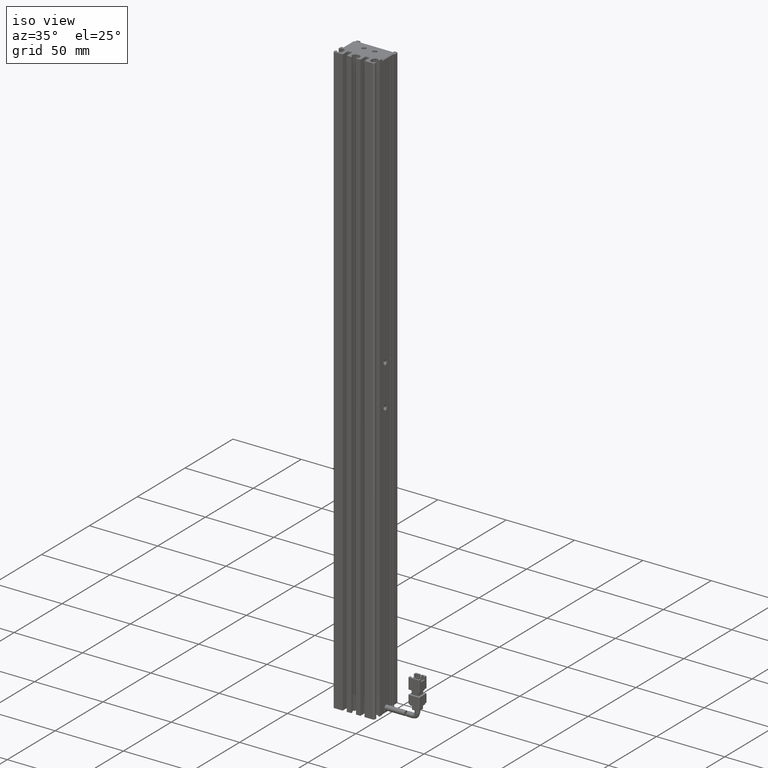
[diagram: clean part render]
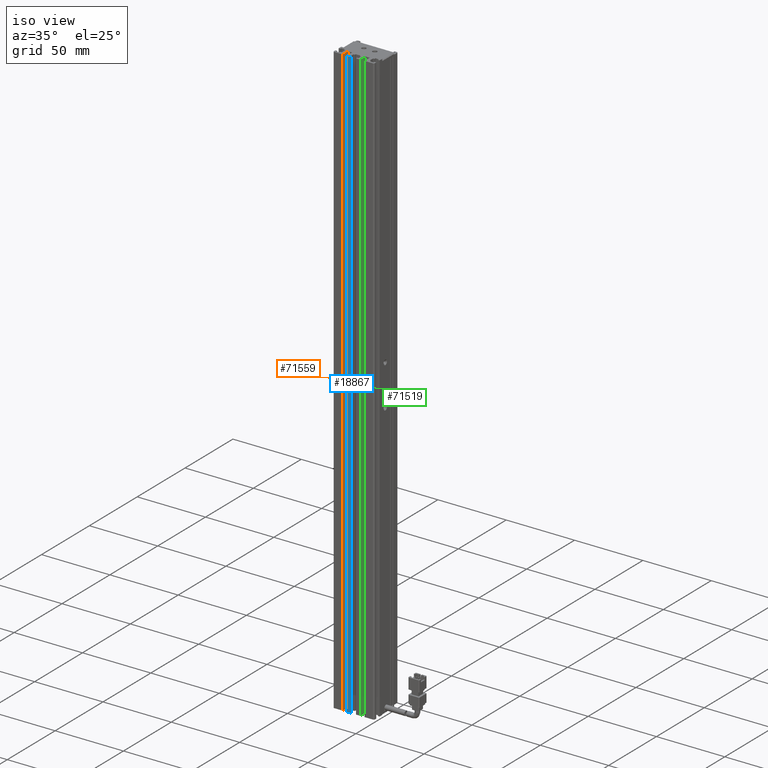
[diagram: same view with three faces highlighted in distinct colors, each labeled with its STEP entity id]
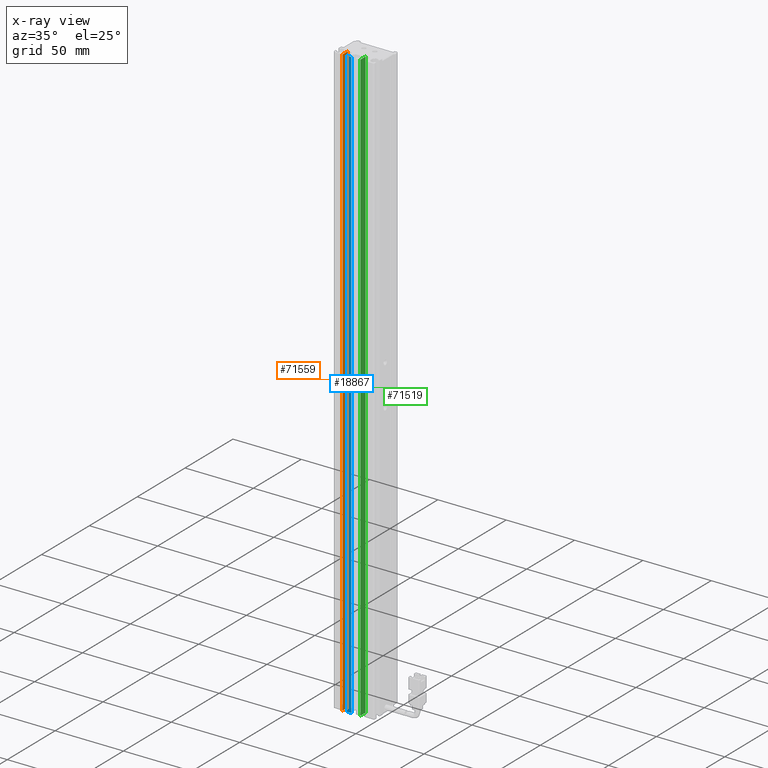
[diagram: x-ray of the same camera — body ghosted, the three highlighted faces saturated]
A machine part, iso view with three faces highlighted in distinct colors.
The next image is the same camera in x-ray (body ghosted, the three faces saturated) — at least one of them is partly hidden behind the body in this view.
Their STEP definitions:

[orange] entity #71559 — the highlighted planar face has unit normal (-1, 0, 0).
#1902 = LINE ( 'NONE', #17249, #34533 ) ;
#5639 = CARTESIAN_POINT ( 'NONE',  ( 32.92537974683543200, 10.69594479660386800, -332.0000000000000000 ) ) ;
#6559 = EDGE_CURVE ( 'NONE', #61937, #23156, #15769, .T. ) ;
#10011 = VECTOR ( 'NONE', #35826, 1000.000000000000000 ) ;
#13469 = CARTESIAN_POINT ( 'NONE',  ( 32.92537974683543200, 16.19594479660386500, 102.0000000000000000 ) ) ;
#15769 = LINE ( 'NONE', #40181, #46506 ) ;
#17249 = CARTESIAN_POINT ( 'NONE',  ( 32.92537974683543200, 7.083797468354437600, 102.0000000000000000 ) ) ;
#17338 = EDGE_CURVE ( 'NONE', #61937, #71895, #59015, .T. ) ;
#19635 = CARTESIAN_POINT ( 'NONE',  ( 32.92537974683543200, 16.19594479660386500, 102.0000000000000000 ) ) ;
#20033 = ORIENTED_EDGE ( 'NONE', *, *, #53752, .F. ) ;
#20244 = CARTESIAN_POINT ( 'NONE',  ( 32.92537974683543200, 16.19594479660386500, -332.0000000000000000 ) ) ;
#23156 = VERTEX_POINT ( 'NONE', #61096 ) ;
#24694 = AXIS2_PLACEMENT_3D ( 'NONE', #29459, #72513, #35613 ) ;
#26769 = EDGE_CURVE ( 'NONE', #71895, #52316, #70390, .T. ) ;
#28582 = DIRECTION ( 'NONE',  ( 0.0000000000000000000, 0.0000000000000000000, 1.000000000000000000 ) ) ;
#29459 = CARTESIAN_POINT ( 'NONE',  ( 32.92537974683543200, 7.083797468354437600, 102.0000000000000000 ) ) ;
#34533 = VECTOR ( 'NONE', #60235, 1000.000000000000000 ) ;
#35613 = DIRECTION ( 'NONE',  ( 0.0000000000000000000, 0.0000000000000000000, 1.000000000000000000 ) ) ;
#35826 = DIRECTION ( 'NONE',  ( 0.0000000000000000000, 1.000000000000000000, -0.0000000000000000000 ) ) ;
#39199 = ORIENTED_EDGE ( 'NONE', *, *, #17338, .T. ) ;
#40181 = CARTESIAN_POINT ( 'NONE',  ( 32.92537974683543200, 10.69594479660386800, 102.0000000000000000 ) ) ;
#46506 = VECTOR ( 'NONE', #28582, 1000.000000000000000 ) ;
#47727 = CARTESIAN_POINT ( 'NONE',  ( 32.92537974683543200, 7.083797468354437600, -332.0000000000000000 ) ) ;
#48970 = ORIENTED_EDGE ( 'NONE', *, *, #6559, .F. ) ;
#50300 = DIRECTION ( 'NONE',  ( 0.0000000000000000000, -0.0000000000000000000, 1.000000000000000000 ) ) ;
#52272 = ORIENTED_EDGE ( 'NONE', *, *, #26769, .T. ) ;
#52316 = VERTEX_POINT ( 'NONE', #13469 ) ;
#53752 = EDGE_CURVE ( 'NONE', #23156, #52316, #1902, .T. ) ;
#57171 = FACE_OUTER_BOUND ( 'NONE', #59562, .T. ) ;
#59015 = LINE ( 'NONE', #47727, #10011 ) ;
#59562 = EDGE_LOOP ( 'NONE', ( #52272, #20033, #48970, #39199 ) ) ;
#60235 = DIRECTION ( 'NONE',  ( 0.0000000000000000000, 1.000000000000000000, -0.0000000000000000000 ) ) ;
#61096 = CARTESIAN_POINT ( 'NONE',  ( 32.92537974683543200, 10.69594479660386800, 102.0000000000000000 ) ) ;
#61937 = VERTEX_POINT ( 'NONE', #5639 ) ;
#68434 = VECTOR ( 'NONE', #50300, 1000.000000000000000 ) ;
#70390 = LINE ( 'NONE', #19635, #68434 ) ;
#71559 = ADVANCED_FACE ( 'NONE', ( #57171 ), #72263, .F. ) ;
#71895 = VERTEX_POINT ( 'NONE', #20244 ) ;
#72263 = PLANE ( 'NONE',  #24694 ) ;
#72513 = DIRECTION ( 'NONE',  ( -1.000000000000000000, 0.0000000000000000000, 0.0000000000000000000 ) ) ;

[blue] entity #18867 — the highlighted planar face has unit normal (0, -1, 0).
#1105 = CARTESIAN_POINT ( 'NONE',  ( 40.92537974683542500, 10.69594479660386800, 102.0000000000000000 ) ) ;
#2931 = VECTOR ( 'NONE', #40493, 1000.000000000000000 ) ;
#7002 = VERTEX_POINT ( 'NONE', #19330 ) ;
#7035 = DIRECTION ( 'NONE',  ( 1.000000000000000000, 0.0000000000000000000, 0.0000000000000000000 ) ) ;
#14539 = VERTEX_POINT ( 'NONE', #16011 ) ;
#14630 = VECTOR ( 'NONE', #72106, 1000.000000000000000 ) ;
#15022 = EDGE_CURVE ( 'NONE', #22461, #7002, #47345, .T. ) ;
#15653 = EDGE_CURVE ( 'NONE', #14539, #22461, #17262, .T. ) ;
#16011 = CARTESIAN_POINT ( 'NONE',  ( 35.92537974683543200, 10.69594479660386800, 102.0000000000000000 ) ) ;
#17262 = LINE ( 'NONE', #53973, #49936 ) ;
#18867 = ADVANCED_FACE ( 'NONE', ( #61597 ), #51551, .T. ) ;
#19189 = LINE ( 'NONE', #64914, #2931 ) ;
#19330 = CARTESIAN_POINT ( 'NONE',  ( 39.17537974683542500, 10.69594479660386800, -332.0000000000000000 ) ) ;
#21380 = DIRECTION ( 'NONE',  ( 0.0000000000000000000, -1.000000000000000000, 0.0000000000000000000 ) ) ;
#22461 = VERTEX_POINT ( 'NONE', #40819 ) ;
#22932 = EDGE_CURVE ( 'NONE', #7002, #35198, #19189, .T. ) ;
#23041 = DIRECTION ( 'NONE',  ( 0.0000000000000000000, -0.0000000000000000000, -1.000000000000000000 ) ) ;
#23845 = EDGE_CURVE ( 'NONE', #14539, #35198, #40173, .T. ) ;
#29501 = AXIS2_PLACEMENT_3D ( 'NONE', #58248, #21380, #64386 ) ;
#35198 = VERTEX_POINT ( 'NONE', #69480 ) ;
#40173 = LINE ( 'NONE', #1105, #70973 ) ;
#40493 = DIRECTION ( 'NONE',  ( -0.0000000000000000000, 0.0000000000000000000, 1.000000000000000000 ) ) ;
#40819 = CARTESIAN_POINT ( 'NONE',  ( 35.92537974683543200, 10.69594479660386800, -332.0000000000000000 ) ) ;
#47345 = LINE ( 'NONE', #65865, #14630 ) ;
#49936 = VECTOR ( 'NONE', #23041, 1000.000000000000000 ) ;
#51551 = PLANE ( 'NONE',  #29501 ) ;
#53973 = CARTESIAN_POINT ( 'NONE',  ( 35.92537974683543200, 10.69594479660386800, 102.0000000000000000 ) ) ;
#58248 = CARTESIAN_POINT ( 'NONE',  ( 40.92537974683542500, 10.69594479660386800, 102.0000000000000000 ) ) ;
#61597 = FACE_OUTER_BOUND ( 'NONE', #74158, .T. ) ;
#64386 = DIRECTION ( 'NONE',  ( 0.0000000000000000000, -0.0000000000000000000, -1.000000000000000000 ) ) ;
#64914 = CARTESIAN_POINT ( 'NONE',  ( 39.17537974683542500, 10.69594479660386800, 102.0000000000000000 ) ) ;
#65865 = CARTESIAN_POINT ( 'NONE',  ( 40.92537974683542500, 10.69594479660386800, -332.0000000000000000 ) ) ;
#69480 = CARTESIAN_POINT ( 'NONE',  ( 39.17537974683542500, 10.69594479660386800, 102.0000000000000000 ) ) ;
#70973 = VECTOR ( 'NONE', #7035, 1000.000000000000000 ) ;
#71088 = ORIENTED_EDGE ( 'NONE', *, *, #22932, .T. ) ;
#71615 = ORIENTED_EDGE ( 'NONE', *, *, #15653, .T. ) ;
#72106 = DIRECTION ( 'NONE',  ( 1.000000000000000000, 0.0000000000000000000, 0.0000000000000000000 ) ) ;
#74158 = EDGE_LOOP ( 'NONE', ( #79057, #71615, #74859, #71088 ) ) ;
#74859 = ORIENTED_EDGE ( 'NONE', *, *, #15022, .T. ) ;
#79057 = ORIENTED_EDGE ( 'NONE', *, *, #23845, .F. ) ;

[green] entity #71519 — the highlighted planar face has unit normal (-1, -0, 0).
#77 = CARTESIAN_POINT ( 'NONE',  ( 45.92537974683541800, 16.19594479660386800, 102.0000000000000000 ) ) ;
#3229 = EDGE_CURVE ( 'NONE', #72726, #58046, #6963, .T. ) ;
#6963 = LINE ( 'NONE', #79005, #54073 ) ;
#9204 = DIRECTION ( 'NONE',  ( 0.0000000000000000000, 1.000000000000000000, -0.0000000000000000000 ) ) ;
#18476 = LINE ( 'NONE', #39792, #26169 ) ;
#19297 = EDGE_LOOP ( 'NONE', ( #75194, #21594, #49739, #76902 ) ) ;
#21316 = VECTOR ( 'NONE', #42979, 1000.000000000000000 ) ;
#21594 = ORIENTED_EDGE ( 'NONE', *, *, #45559, .F. ) ;
#23629 = VERTEX_POINT ( 'NONE', #65615 ) ;
#23785 = VERTEX_POINT ( 'NONE', #43237 ) ;
#26169 = VECTOR ( 'NONE', #9204, 1000.000000000000000 ) ;
#30932 = EDGE_CURVE ( 'NONE', #23785, #58046, #68441, .T. ) ;
#35085 = DIRECTION ( 'NONE',  ( -1.000000000000000000, -3.154042683594196600E-016, 0.0000000000000000000 ) ) ;
#38088 = CARTESIAN_POINT ( 'NONE',  ( 45.92537974683541800, 16.19594479660386800, -332.0000000000000000 ) ) ;
#39706 = CARTESIAN_POINT ( 'NONE',  ( 45.92537974683541800, 10.69594479660386800, -332.0000000000000000 ) ) ;
#39792 = CARTESIAN_POINT ( 'NONE',  ( 45.92537974683541800, 7.083797468354437600, 102.0000000000000000 ) ) ;
#42979 = DIRECTION ( 'NONE',  ( 0.0000000000000000000, -0.0000000000000000000, -1.000000000000000000 ) ) ;
#43237 = CARTESIAN_POINT ( 'NONE',  ( 45.92537974683541800, 16.19594479660386800, 102.0000000000000000 ) ) ;
#44419 = VECTOR ( 'NONE', #69209, 1000.000000000000000 ) ;
#45559 = EDGE_CURVE ( 'NONE', #23629, #23785, #18476, .T. ) ;
#47971 = EDGE_CURVE ( 'NONE', #72726, #23629, #77242, .T. ) ;
#49739 = ORIENTED_EDGE ( 'NONE', *, *, #47971, .F. ) ;
#53119 = DIRECTION ( 'NONE',  ( 0.0000000000000000000, 1.000000000000000000, -0.0000000000000000000 ) ) ;
#54073 = VECTOR ( 'NONE', #53119, 1000.000000000000000 ) ;
#58046 = VERTEX_POINT ( 'NONE', #38088 ) ;
#63020 = CARTESIAN_POINT ( 'NONE',  ( 45.92537974683541800, 10.69594479660386800, 102.0000000000000000 ) ) ;
#65615 = CARTESIAN_POINT ( 'NONE',  ( 45.92537974683541800, 10.69594479660386800, 102.0000000000000000 ) ) ;
#68441 = LINE ( 'NONE', #77, #21316 ) ;
#69209 = DIRECTION ( 'NONE',  ( 0.0000000000000000000, 0.0000000000000000000, 1.000000000000000000 ) ) ;
#71519 = ADVANCED_FACE ( 'NONE', ( #79333 ), #77654, .F. ) ;
#71990 = CARTESIAN_POINT ( 'NONE',  ( 45.92537974683541800, 7.083797468354439400, 102.0000000000000000 ) ) ;
#72726 = VERTEX_POINT ( 'NONE', #39706 ) ;
#75194 = ORIENTED_EDGE ( 'NONE', *, *, #30932, .F. ) ;
#75740 = AXIS2_PLACEMENT_3D ( 'NONE', #71990, #35085, #78156 ) ;
#76902 = ORIENTED_EDGE ( 'NONE', *, *, #3229, .T. ) ;
#77242 = LINE ( 'NONE', #63020, #44419 ) ;
#77654 = PLANE ( 'NONE',  #75740 ) ;
#78156 = DIRECTION ( 'NONE',  ( 3.154042683594196600E-016, -1.000000000000000000, 0.0000000000000000000 ) ) ;
#79005 = CARTESIAN_POINT ( 'NONE',  ( 45.92537974683541800, 7.083797468354437600, -332.0000000000000000 ) ) ;
#79333 = FACE_OUTER_BOUND ( 'NONE', #19297, .T. ) ;